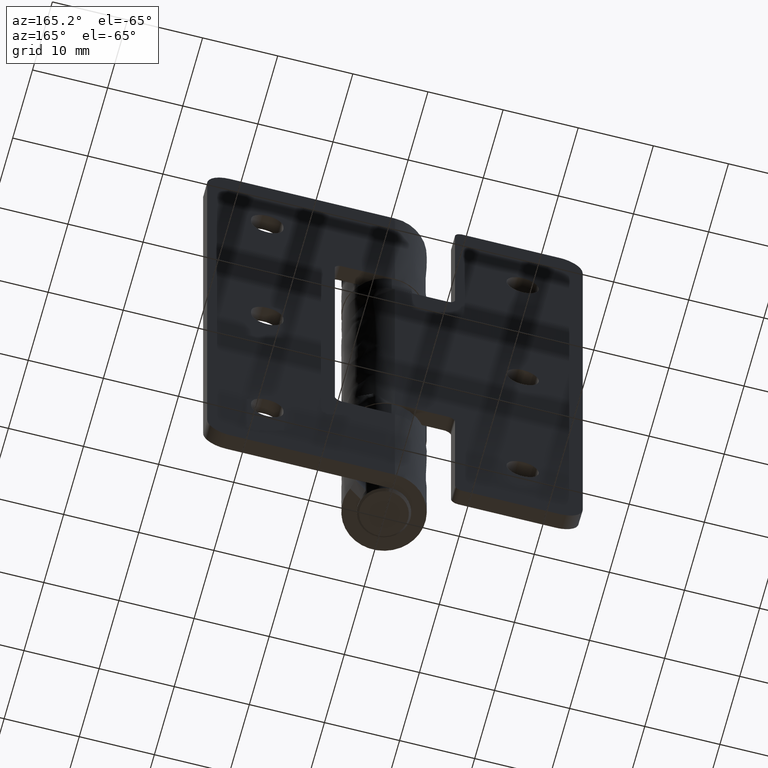
[diagram: clean part render]
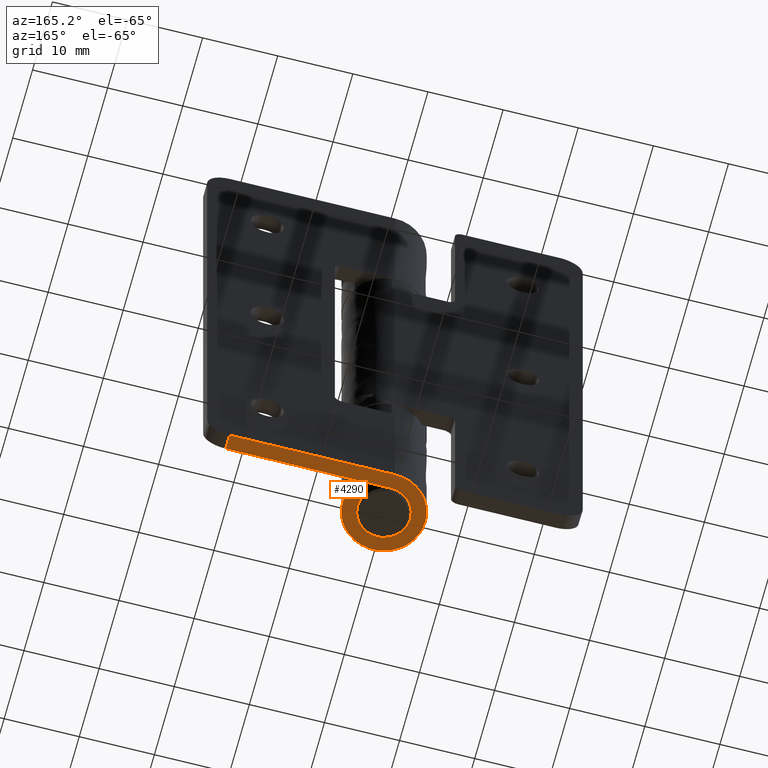
[diagram: same view with one face highlighted and labeled with its STEP entity id]
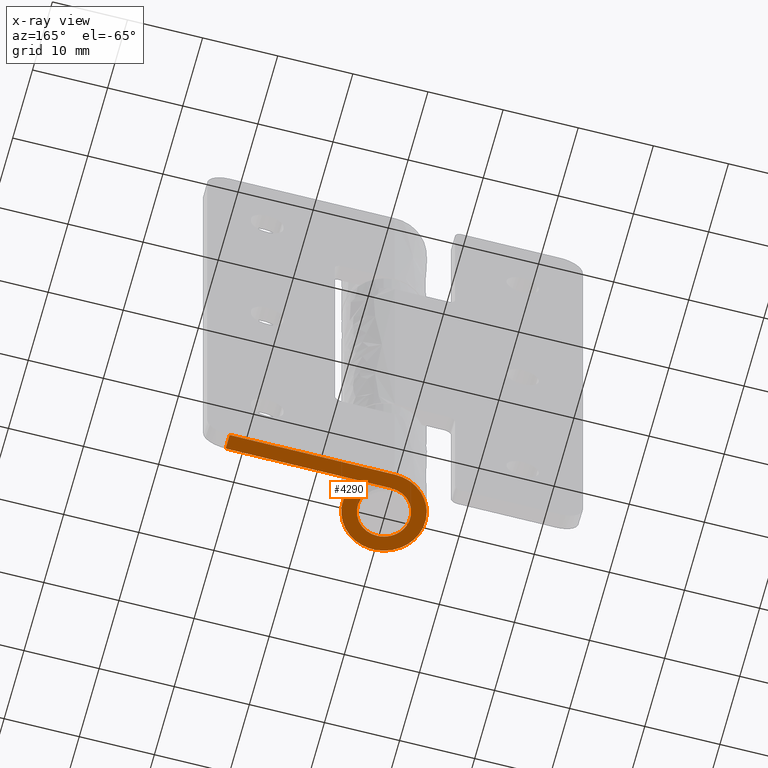
[diagram: x-ray of the same camera — body ghosted, the highlighted face saturated]
A machine part, auxiliary view. The second image highlights one B-rep face of the part: STEP entity #4290.
The next image is the same camera in x-ray: the body ghosted, the highlighted face saturated — about 0% of this face is hidden behind the body in this view.
In plain terms, the highlighted face is a freeform B-spline surface patch.
Its self-contained STEP definition (entity closure, byte-faithful):
#2914=CARTESIAN_POINT('',(22.0,5.500000000000229,0.0));
#2915=VERTEX_POINT('',#2914);
#2929=CARTESIAN_POINT('',(-1.010300E-015,5.500000000000000,0.0));
#2930=VERTEX_POINT('',#2929);
#2931=CARTESIAN_POINT('',(-1.010300E-015,5.500000000000000,0.0));
#2932=CARTESIAN_POINT('',(22.0,5.500000000000229,0.0));
#2933=QUASI_UNIFORM_CURVE('',1,(#2931,#2932),.UNSPECIFIED.,.F.,.U.);
#2934=EDGE_CURVE('',#2930,#2915,#2933,.T.);
#3369=CARTESIAN_POINT('',(3.356662926557275,0.991369758200455,0.0));
#3370=VERTEX_POINT('',#3369);
#3391=CARTESIAN_POINT('',(5.078391855980370,2.111856092898445,0.0));
#3392=VERTEX_POINT('',#3391);
#3406=CARTESIAN_POINT('',(3.356662926557275,0.991369758200455,0.0));
#3407=CARTESIAN_POINT('',(5.078391855980370,2.111856092898445,0.0));
#3408=QUASI_UNIFORM_CURVE('',1,(#3406,#3407),.UNSPECIFIED.,.F.,.U.);
#3409=EDGE_CURVE('',#3370,#3392,#3408,.T.);
#3571=CARTESIAN_POINT('',(22.0,3.500000000000000,0.0));
#3572=VERTEX_POINT('',#3571);
#3586=CARTESIAN_POINT('',(22.0,5.500000000000229,0.0));
#3587=CARTESIAN_POINT('',(22.0,3.500000000000000,0.0));
#3588=QUASI_UNIFORM_CURVE('',1,(#3586,#3587),.UNSPECIFIED.,.F.,.U.);
#3589=EDGE_CURVE('',#2915,#3572,#3588,.T.);
#4210=CARTESIAN_POINT('',(-6.873585414609613,6.049448533626019,2.842171E-014));
#4211=CARTESIAN_POINT('',(23.373623803515901,6.049448533626019,2.842171E-014));
#4212=CARTESIAN_POINT('',(-6.873585414609613,-6.049419897567942,2.842171E-014));
#4213=CARTESIAN_POINT('',(23.373623803515901,-6.049419897567942,2.842171E-014));
#4214=B_SPLINE_SURFACE_WITH_KNOTS('',1,1,((#4210,#4212),(#4211,#4213)),.UNSPECIFIED.,.F.,.F.,.U.,(2,2),(2,2),(0.0,30.247209218125519),(0.0,12.098868431193960),.UNSPECIFIED.);
#4215=CARTESIAN_POINT('',(-2.273737E-013,3.500000000000000,0.0));
#4216=VERTEX_POINT('',#4215);
#4217=CARTESIAN_POINT('',(-2.273737E-013,3.500000000000000,0.0));
#4218=CARTESIAN_POINT('',(-0.341778084917423,3.500144158202210,0.0));
#4219=CARTESIAN_POINT('',(-0.888512581222776,3.419249698748013,0.0));
#4220=CARTESIAN_POINT('',(-1.546748868593948,3.155643764366951,0.0));
#4221=CARTESIAN_POINT('',(-2.096230294962825,2.828523417013931,0.0));
#4222=CARTESIAN_POINT('',(-2.560829449915563,2.418874388944566,0.0));
#4223=CARTESIAN_POINT('',(-3.005127040574668,1.837941746406331,0.0));
#4224=CARTESIAN_POINT('',(-3.329503334404127,1.179395465927442,0.0));
#4225=CARTESIAN_POINT('',(-3.491976443748925,0.463489314678212,0.0));
#4226=CARTESIAN_POINT('',(-3.513767272455299,-0.313262194473623,0.0));
#4227=CARTESIAN_POINT('',(-3.368508147073847,-1.081575568384941,0.0));
#4228=CARTESIAN_POINT('',(-2.977013939862751,-1.911593372706839,0.0));
#4229=CARTESIAN_POINT('',(-2.476486567519213,-2.512314782517749,0.0));
#4230=CARTESIAN_POINT('',(-1.935354360383697,-2.933318547791537,0.0));
#4231=CARTESIAN_POINT('',(-1.375387059712719,-3.243023109674503,0.0));
#4232=CARTESIAN_POINT('',(-0.676224757085429,-3.466865170463442,0.0));
#4233=CARTESIAN_POINT('',(0.147357424990651,-3.529136462301662,0.0));
#4234=CARTESIAN_POINT('',(0.872229413367214,-3.412931692049412,0.0));
#4235=CARTESIAN_POINT('',(1.558168292642355,-3.159252176458011,0.0));
#4236=CARTESIAN_POINT('',(2.105935541947720,-2.823815976060010,0.0));
#4237=CARTESIAN_POINT('',(2.610003245970488,-2.359062826236199,0.0));
#4238=CARTESIAN_POINT('',(2.942632147081776,-1.921751989779961,0.0));
#4239=CARTESIAN_POINT('',(3.223990158596211,-1.399259212426443,0.0));
#4240=CARTESIAN_POINT('',(3.444105822970891,-0.772878850949130,0.0));
#4241=CARTESIAN_POINT('',(3.540028541616839,0.071533302043457,0.0));
#4242=CARTESIAN_POINT('',(3.447118065170602,0.685479573429677,0.0));
#4243=CARTESIAN_POINT('',(3.356662926557275,0.991369758200455,0.0));
#4244=B_SPLINE_CURVE_WITH_KNOTS('',3,(#4217,#4218,#4219,#4220,#4221,#4222,#4223,#4224,#4225,#4226,#4227,#4228,#4229,#4230,#4231,#4232,#4233,#4234,#4235,#4236,#4237,#4238,#4239,#4240,#4241,#4242,#4243),.UNSPECIFIED.,.F.,.U.,(4,1,1,1,1,1,1,1,1,1,1,1,1,1,1,1,1,1,1,1,1,1,1,1,4),(0.000000235665805,1.025296703384061,1.640496750388426,2.118991940050353,2.939260179901101,3.486109400566937,4.306352016465807,5.126559022353192,5.673408050531243,6.630393029486474,7.450668440808048,8.407644148828370,8.954422226239711,9.501251015609920,10.321526529021920,11.141795805970190,11.962073296678049,12.508920209998021,13.329114219503159,13.875943008866610,14.559505198208790,14.969644625778670,15.653199838586429,16.541833892616278,17.498768228810619),.UNSPECIFIED.);
#4245=EDGE_CURVE('',#4216,#3370,#4244,.T.);
#4246=ORIENTED_EDGE('',*,*,#4245,.T.);
#4247=ORIENTED_EDGE('',*,*,#3409,.T.);
#4248=CARTESIAN_POINT('',(-1.010300E-015,5.500000000000000,0.0));
#4249=CARTESIAN_POINT('',(-0.493718884980655,5.500170923925092,0.0));
#4250=CARTESIAN_POINT('',(-1.225001629972763,5.400818669245000,0.0));
#4251=CARTESIAN_POINT('',(-2.280947847594146,5.034277813018608,0.0));
#4252=CARTESIAN_POINT('',(-3.021642403617588,4.626107143144094,0.0));
#4253=CARTESIAN_POINT('',(-3.726143746955717,4.069923884355706,0.0));
#4254=CARTESIAN_POINT('',(-4.360008268544949,3.407025325238306,0.0));
#4255=CARTESIAN_POINT('',(-4.968810745440743,2.464433417159026,0.0));
#4256=CARTESIAN_POINT('',(-5.377921689136604,1.340191317309819,0.0));
#4257=CARTESIAN_POINT('',(-5.513484549979475,0.338664943092663,0.0));
#4258=CARTESIAN_POINT('',(-5.491501382555565,-0.540315285805831,0.0));
#4259=CARTESIAN_POINT('',(-5.356247658533019,-1.354595948140330,0.0));
#4260=CARTESIAN_POINT('',(-5.006351514382778,-2.379248558990154,0.0));
#4261=CARTESIAN_POINT('',(-4.434113868179695,-3.326073444580391,0.0));
#4262=CARTESIAN_POINT('',(-3.576168712469247,-4.232249568150051,0.0));
#4263=CARTESIAN_POINT('',(-2.680951503272666,-4.849114002034349,0.0));
#4264=CARTESIAN_POINT('',(-1.714989059888469,-5.250394727989193,0.0));
#4265=CARTESIAN_POINT('',(-0.680550665730360,-5.497444407531788,0.0));
#4266=CARTESIAN_POINT('',(0.443732011361782,-5.530981416445383,0.0));
#4267=CARTESIAN_POINT('',(1.542422043270728,-5.308639962006112,0.0));
#4268=CARTESIAN_POINT('',(2.532411488097968,-4.920027673704386,0.0));
#4269=CARTESIAN_POINT('',(3.356976952236356,-4.398901090438590,0.0));
#4270=CARTESIAN_POINT('',(4.146265264978704,-3.659009616220919,0.0));
#4271=CARTESIAN_POINT('',(4.671962914973586,-2.950222585049947,0.0));
#4272=CARTESIAN_POINT('',(5.114763725576026,-2.086220040311209,0.0));
#4273=CARTESIAN_POINT('',(5.444113447301889,-1.072547635355318,0.0));
#4274=CARTESIAN_POINT('',(5.542311190597163,0.084947604381183,0.0));
#4275=CARTESIAN_POINT('',(5.397280699968339,1.194932043017378,0.0));
#4276=CARTESIAN_POINT('',(5.204795810834606,1.807967945626035,0.0));
#4277=CARTESIAN_POINT('',(5.078391855980370,2.111856092898445,0.0));
#4278=B_SPLINE_CURVE_WITH_KNOTS('',3,(#4248,#4249,#4250,#4251,#4252,#4253,#4254,#4255,#4256,#4257,#4258,#4259,#4260,#4261,#4262,#4263,#4264,#4265,#4266,#4267,#4268,#4269,#4270,#4271,#4272,#4273,#4274,#4275,#4276,#4277),.UNSPECIFIED.,.F.,.U.,(4,1,1,1,1,1,1,1,1,1,1,1,1,1,1,1,1,1,1,1,1,1,1,1,1,1,1,4),(0.000000355152963,1.481086694025670,2.194195032357136,3.346158322906678,4.004428275601011,4.882123149312907,6.088948329623459,7.350572622387531,8.447677452803401,9.105916097409963,9.983611628467028,10.916158623240561,12.342415850412880,13.274963093115749,14.646257470107560,15.578803474860090,16.401656745972360,17.827893416998680,18.925014723695231,19.747829261469558,21.009525328717409,21.832270479892301,22.984258381426969,23.642510903549979,24.739628472275580,26.165865772469029,27.098399105080979,28.085784939907491),.UNSPECIFIED.);
#4279=EDGE_CURVE('',#2930,#3392,#4278,.T.);
#4280=ORIENTED_EDGE('',*,*,#4279,.F.);
#4281=ORIENTED_EDGE('',*,*,#2934,.T.);
#4282=ORIENTED_EDGE('',*,*,#3589,.T.);
#4283=CARTESIAN_POINT('',(22.0,3.500000000000000,0.0));
#4284=CARTESIAN_POINT('',(-2.273737E-013,3.500000000000000,0.0));
#4285=QUASI_UNIFORM_CURVE('',1,(#4283,#4284),.UNSPECIFIED.,.F.,.U.);
#4286=EDGE_CURVE('',#3572,#4216,#4285,.T.);
#4287=ORIENTED_EDGE('',*,*,#4286,.T.);
#4288=EDGE_LOOP('',(#4246,#4247,#4280,#4281,#4282,#4287));
#4289=FACE_OUTER_BOUND('',#4288,.T.);
#4290=ADVANCED_FACE('',(#4289),#4214,.T.);